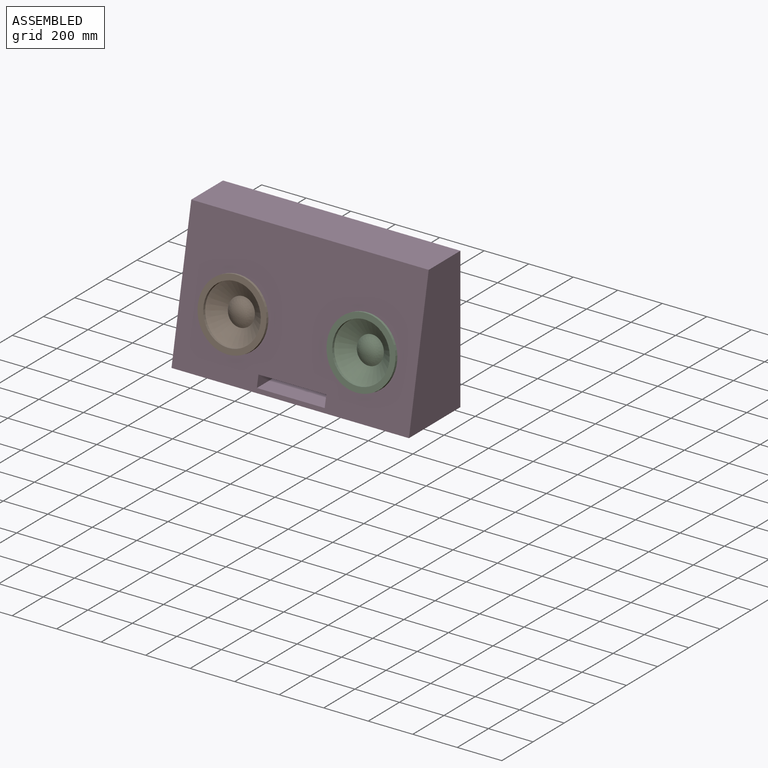
[diagram: assembled view]
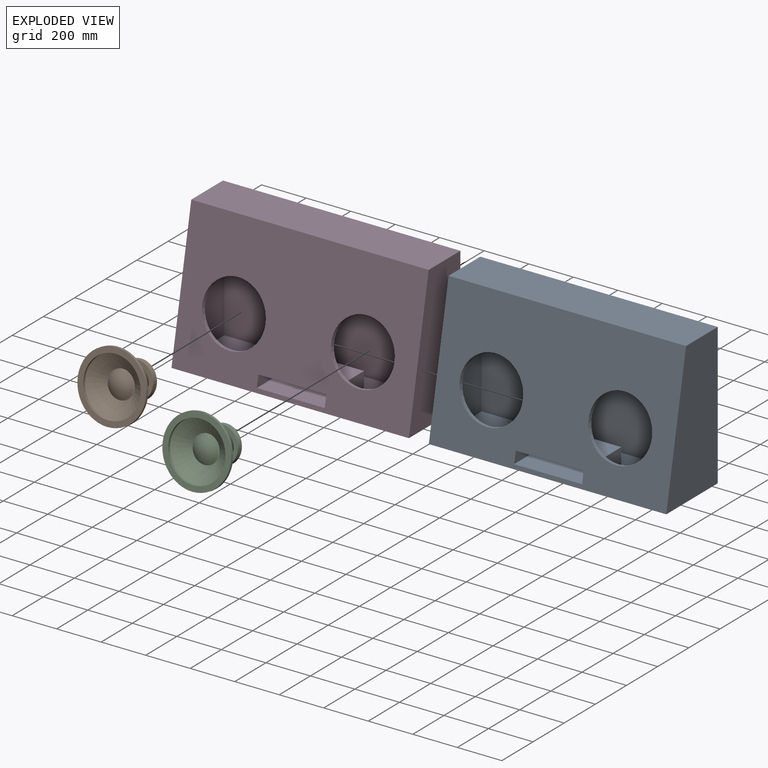
[diagram: exploded view]
GUIDED TOUR — MATED ASSEMBLY (Onshape document 32dec085a1a6e0328c9df80b, AutoMate assembly 32dec085a1a6e0328c9df80b_0a0aac6e06e7a107e2a16ed9_fb869511811cfe541d8ffc53_default)

This assembly has 4 components, labeled P0..P3 below (a component is one placed occurrence of a part; the same part can appear more than once), held together by 2 mates. A mate is a constraint between two components; its type names the relative motion it leaves free:
  CYLINDRICAL — leaves both rotation about and translation along the listed axis free.
Axis/direction vectors are unit vectors and 'through' points are millimeter coordinates, both in the assembly's world frame.

MATES
  1. CYLINDRICAL "Cylindrical 1": P1 <-> P3, axis (0.000, 0.981, -0.196) through (-289.72, -277.43, 263.86) mm
  2. CYLINDRICAL "Cylindrical 2": P2 <-> P3, axis (0.000, 0.981, -0.196) through (289.72, -277.43, 263.86) mm

ASSEMBLY ORDER
  1. P3 — the base component [order heuristic]
  2. P0 — core [order heuristic]
  3. P2 [order verified]
  4. P1 [order verified]
(P1, P2 verified with a relaxed clearance tolerance: the source model stores slight part interference there.)
Order-tag legend:
  [order verified] — this step's position reverses a verified removal order: the component was checked to insert without passing through the ones already placed.
  [order heuristic] — the first 2 components form the assembly's core: parts whose collision-free extraction could not be verified, listed in mate-graph order.

Of the 4 components, 2 carry the full construction recipe — the FeatureScript program that regenerates the part's solid from scratch; the rest are supplied as boundary geometry only.
Each toured component is shown spotlighted twice — in the assembled view, then in the exploded view, where a leader line traces a displaced component back to its assembled socket (saturated green if recipe-attached, orange if geometry-only; every other component desaturated gray) — followed by its recipe or geometry summary and the mates that hold it.
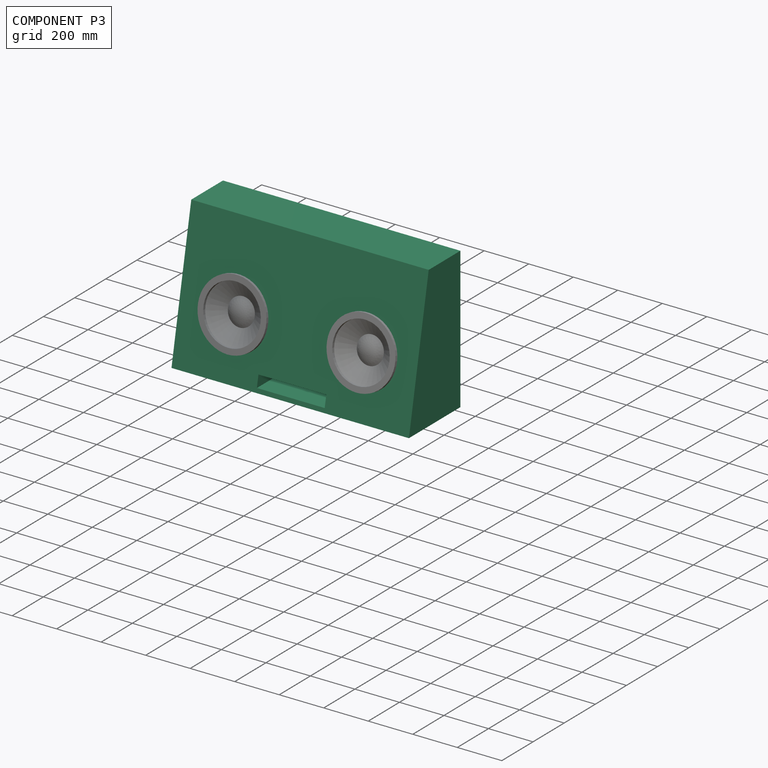
[diagram: component P3 — assembled]
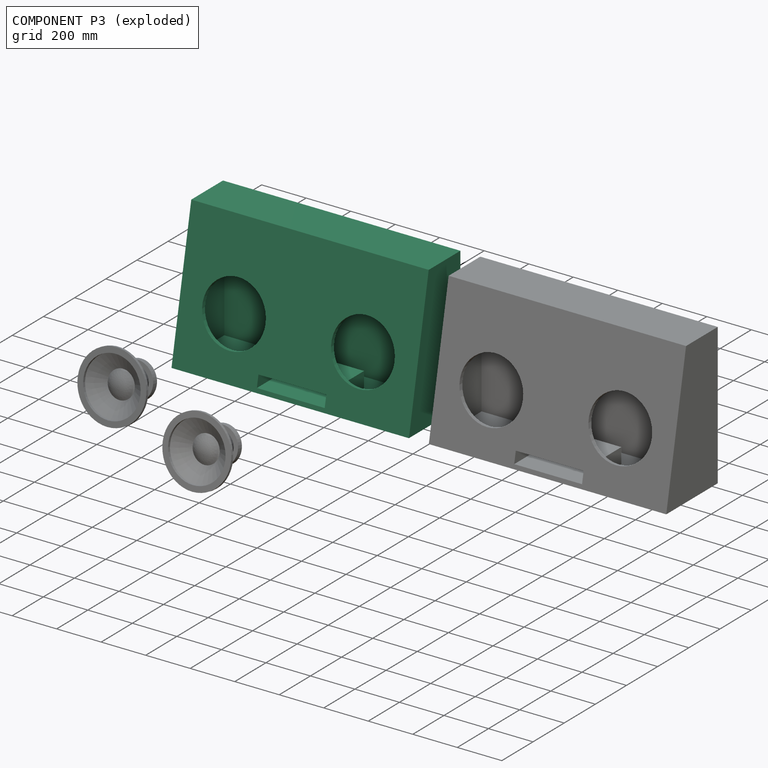
[diagram: component P3 — exploded]
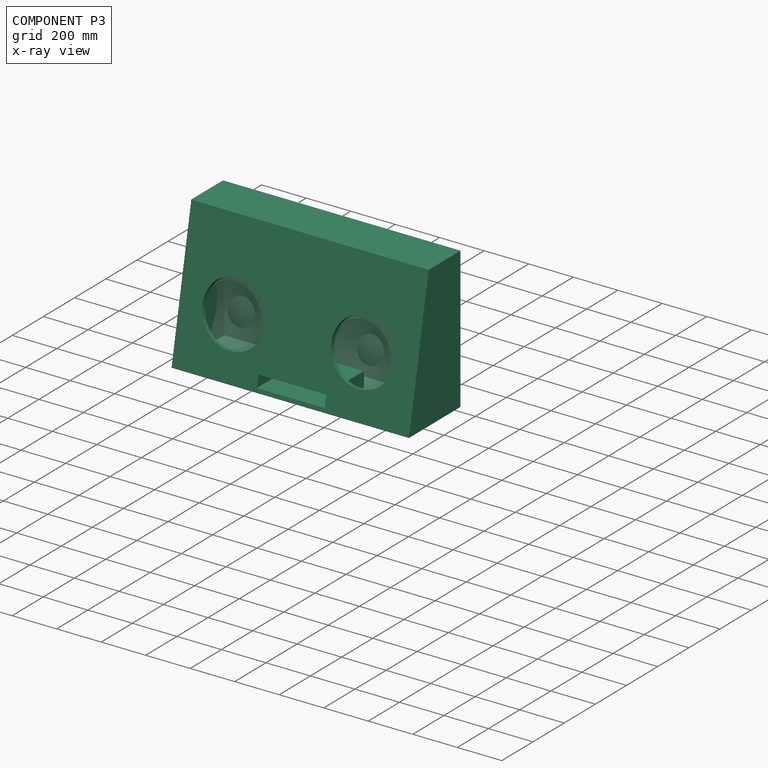
[diagram: component P3 — x-ray view]
COMPONENT P3 — same part as P0 (CADFS 00611857); its construction recipe is shown at P0.
Held by: CYLINDRICAL mate "Cylindrical 1" to P1; CYLINDRICAL mate "Cylindrical 2" to P2.
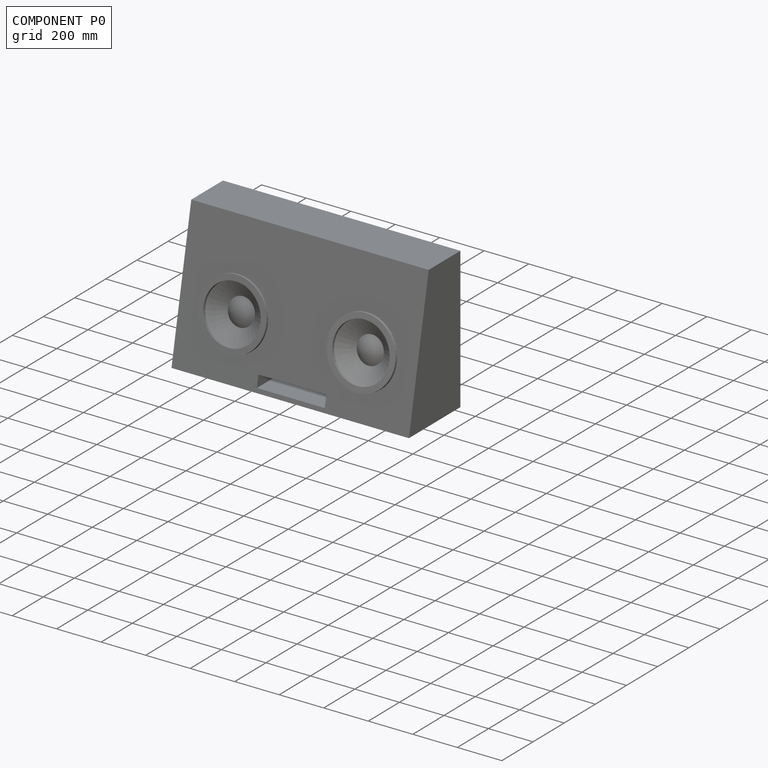
[diagram: component P0 — assembled]
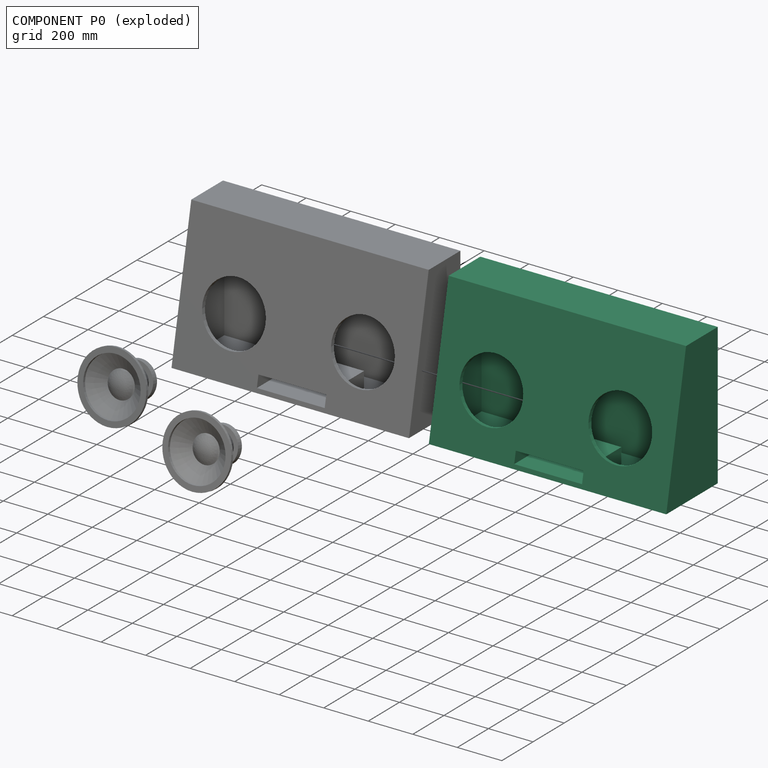
[diagram: component P0 — exploded]
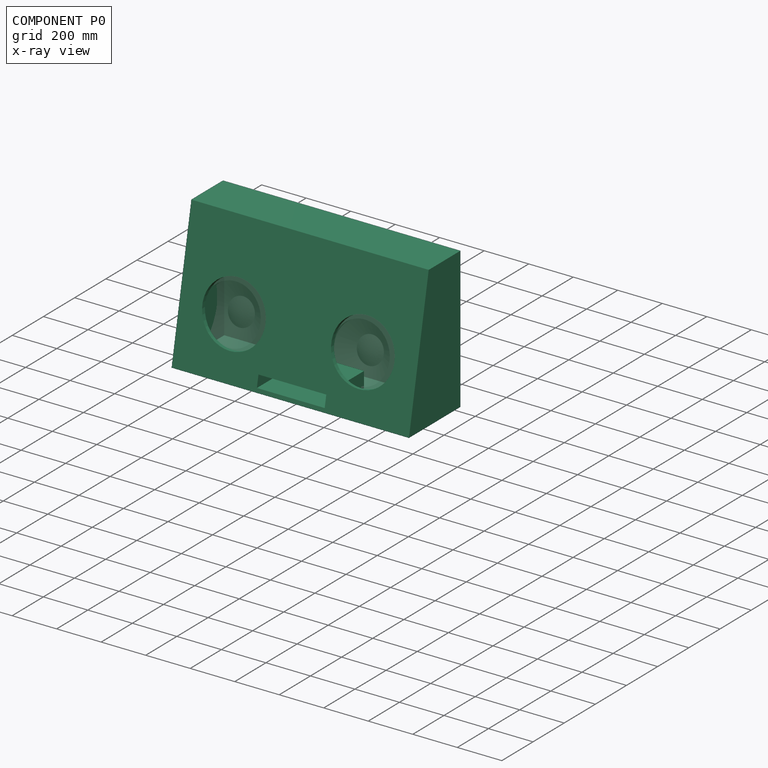
[diagram: component P0 — x-ray view]
COMPONENT P0 — recipe-attached (CADFS 00611857, mesh-verified: the recipe's output STEP matches this component's geometry to below the mesh-comparison resolution (tessellation chordal tolerance ~1.93 mm)).
Held by: no mates (free).
Construction recipe (FeatureScript — the CAD program that rebuilds this solid; sketch coordinates are in the units given by the * unit suffixes, e.g. mm):

FeatureScript 1511;
import(path : "onshape/std/geometry.fs", version : "1511.0");
import(path : "onshape/std/common.fs", version : "1511.0");
const mm = millimeter;
const VERTEX = EntityType.VERTEX;
const EDGE = EntityType.EDGE;
const FACE = EntityType.FACE;
const BODY = EntityType.BODY;
function v(x, y){return vector(x, y);}
function OD(order){return orderDisambiguation(order);}
function OSD(set){return originalSetDisambiguation(set);}
function TD(topology){return topologyDisambiguation(topology);}
function TDD(query){return trueDependencyDisambiguation(query);}
function sQuery(a, b, c) {return sketchEntityQuery(a, b, c);}

annotation { "Feature Type Name" : "Feature", "Feature Type Description" : "" }
export const myFeature = defineFeature(function(context is Context, id is Id, definition is map)
    precondition{}
    {
        {
            var Q0;
            Q0=qCreatedBy(makeId("Right.planeOp"),FACE);
            var sketch = newSketch(context, id + "F0", { "sketchPlane" : qUnion([Q0])});
            skLineSegment(sketch, "E0", {"start": v(0, 0) * mm, "end": v(-330.2, 0) * mm});
            skLineSegment(sketch, "E1", {"start": v(-330.2, 0) * mm, "end": v(-203.2, 635) * mm});
            skLineSegment(sketch, "E2", {"start": v(-203.2, 635) * mm, "end": v(0, 635) * mm});
            skLineSegment(sketch, "E3", {"start": v(0, 635) * mm, "end": v(0, 0) * mm});
            skSolve(sketch);
        }
        {
            var Q0;
            Q0 = qSketchRegion(id + "F0", true);
            extrude(context, id + "F1", {"entities" : qUnion([Q0]), "depth" : 533.4 * mm, "offsetDistance" : 25.4 * mm, "hasSecondDirection" : true, "secondDirectionOppositeDirection" : true, "secondDirectionDepth" : 533.4 * mm});
        }
        {
            var Q0;
            Q0=qCreatedBy(makeId("Front.planeOp"),FACE);
            cPlane(context, id + "F2", {"entities" : qUnion([Q0]), "cplaneType" : CPlaneType.OFFSET, "offset" : 25.4 * mm, "width" : 152.4 * mm, "height" : 152.4 * mm});
        }
        {
            var Q0;
            Q0=qCreatedBy(id+"F2.planeOp",FACE);
            var sketch = newSketch(context, id + "F3", { "sketchPlane" : qUnion([Q0])});
            skLineSegment(sketch, "E4.bottom", {"start": v(-152.4, 69.85) * mm, "end": v(152.4, 69.85) * mm});
            skLineSegment(sketch, "E4.top", {"start": v(-152.4, 19.05) * mm, "end": v(152.4, 19.05) * mm});
            skLineSegment(sketch, "E4.left", {"start": v(-152.4, 69.85) * mm, "end": v(-152.4, 19.05) * mm});
            skLineSegment(sketch, "E4.right", {"start": v(152.4, 69.85) * mm, "end": v(152.4, 19.05) * mm});
            skSolve(sketch);
        }
        {
            var Q0;
            Q0 = qSketchRegion(id + "F3", true);
            extrude(context, id + "F4", {"entities" : qUnion([Q0]), "operationType" : NewBodyOperationType.REMOVE, "endBound" : BoundingType.THROUGH_ALL, "depth" : 25.4 * mm, "offsetDistance" : 25.4 * mm});
        }
        {
            var Q0;
            Q0=makeQuery(id+"F4.boolean.opBoolean","COPY",FACE,{"derivedFrom":makeQuery(id+"F4.opExtrude","SWEPT_FACE",FACE,{"disambiguationData":[OSD([sQuery(id+"F3.wireOp",EDGE,"E4.left")])]})});
            var Q1;
            Q1=makeQuery(id+"F4.boolean.opBoolean","COPY",FACE,{"derivedFrom":makeQuery(id+"F4.opExtrude","SWEPT_FACE",FACE,{"disambiguationData":[OSD([sQuery(id+"F3.wireOp",EDGE,"E4.bottom")])]})});
            var Q2;
            Q2=makeQuery(id+"F4.boolean.opBoolean","COPY",FACE,{"derivedFrom":makeQuery(id+"F4.opExtrude","SWEPT_FACE",FACE,{"disambiguationData":[OSD([sQuery(id+"F3.wireOp",EDGE,"E4.right")])]})});
            shell(context, id + "F5", {"entities" : qUnion([Q0, Q1, Q2]), "thickness" : 19.05 * mm});
        }
        {
            var Q0;
            Q0=makeQuery(id+"F1.opExtrude","SWEPT_FACE",FACE,{"disambiguationData":[OSD([sQuery(id+"F0.wireOp",EDGE,"E1")])]});
            var sketch = newSketch(context, id + "F6", { "sketchPlane" : qUnion([Q0])});
            skCircle(sketch, "E5", {"center": v(-289.72, 204.32) * mm, "radius": 142.08 * mm});
            skCircle(sketch, "E6", {"center": v(289.72, 204.32) * mm, "radius": 142.08 * mm});
            skSolve(sketch);
        }
        {
            var Q0;
            Q0 = qSketchRegion(id + "F6", true);
            extrude(context, id + "F7", {"entities" : qUnion([Q0]), "operationType" : NewBodyOperationType.REMOVE, "oppositeDirection" : true, "depth" : 50.8 * mm, "offsetDistance" : 25.4 * mm});
        }
        {
            var Q0;
            Q0=makeQuery(id+"F4.boolean.opBoolean","COPY",FACE,{"derivedFrom":makeQuery(id+"F4.opExtrude","CAP_FACE",FACE,{"disambiguationData":[OSD([sQuery(id+"F3.wireOp",EDGE,"E4.bottom"),sQuery(id+"F3.wireOp",EDGE,"E4.top"),sQuery(id+"F3.wireOp",EDGE,"E4.left"),sQuery(id+"F3.wireOp",EDGE,"E4.right")])],"isStart":true})});
            var sketch = newSketch(context, id + "F8", { "sketchPlane" : qUnion([Q0])});
            skSolve(sketch);
        }
        {
            var Q0;
            Q0=makeQuery(id+"F8.imprint","IMPRINT",FACE,{"disambiguationData":[TD([[makeQuery(id+"F8.imprint","IMPRINT",EDGE,{"derivedFrom":makeQuery(id+"F4.boolean.opBoolean","COPY",EDGE,{"derivedFrom":makeQuery(id+"F4.opExtrude","CAP_EDGE",EDGE,{"disambiguationData":[OSD([sQuery(id+"F3.wireOp",EDGE,"E4.top")])],"isStart":true})})}),1.0]])]});
            var Q1;
            Q1=makeQuery(id+"F5.opShell","OFFSET_FACE",FACE,{"disambiguationData":[OSD([sQuery(id+"F0.wireOp",EDGE,"E3")])]});
            extrude(context, id + "F9", {"entities" : qUnion([Q0]), "operationType" : NewBodyOperationType.REMOVE, "endBound" : BoundingType.UP_TO_SURFACE, "oppositeDirection" : true, "depth" : 25.4 * mm, "endBoundEntityFace" : qUnion([Q1]), "offsetDistance" : 25.4 * mm});
        }
        {
            var Q0;
            Q0=qCreatedBy(makeId("Front.planeOp"),FACE);
            cPlane(context, id + "F10", {"entities" : qUnion([Q0]), "cplaneType" : CPlaneType.OFFSET, "offset" : 101.6 * mm, "width" : 152.4 * mm, "height" : 152.4 * mm});
        }
        {
            var Q0;
            Q0=qCreatedBy(id+"F10.planeOp",FACE);
            var sketch = newSketch(context, id + "F11", { "sketchPlane" : qUnion([Q0])});
            skLineSegment(sketch, "E7", {"start": v(-152.4, 19.05) * mm, "end": v(-171.45, 19.05) * mm});
            skLineSegment(sketch, "E8", {"start": v(-171.45, 19.05) * mm, "end": v(-171.45, 88.9) * mm});
            skLineSegment(sketch, "E9", {"start": v(-171.45, 88.9) * mm, "end": v(171.45, 88.9) * mm});
            skLineSegment(sketch, "E10", {"start": v(171.45, 88.9) * mm, "end": v(171.45, 19.05) * mm});
            skLineSegment(sketch, "E11", {"start": v(171.45, 19.05) * mm, "end": v(152.4, 19.05) * mm});
            skLineSegment(sketch, "E12", {"start": v(152.4, 19.05) * mm, "end": v(152.4, 69.85) * mm});
            skLineSegment(sketch, "E13", {"start": v(152.4, 69.85) * mm, "end": v(-152.4, 69.85) * mm});
            skLineSegment(sketch, "E14", {"start": v(-152.4, 69.85) * mm, "end": v(-152.4, 19.05) * mm});
            skSolve(sketch);
        }
        {
            var Q0;
            Q0 = qSketchRegion(id + "F11", true);
            var Q1;
            Q1=makeQuery(id+"F1.opExtrude","SWEPT_FACE",FACE,{"disambiguationData":[OSD([sQuery(id+"F0.wireOp",EDGE,"E1")])]});
            extrude(context, id + "F12", {"entities" : qUnion([Q0]), "operationType" : NewBodyOperationType.ADD, "endBound" : BoundingType.UP_TO_SURFACE, "depth" : 25.4 * mm, "endBoundEntityFace" : qUnion([Q1]), "offsetDistance" : 25.4 * mm});
        }
    });
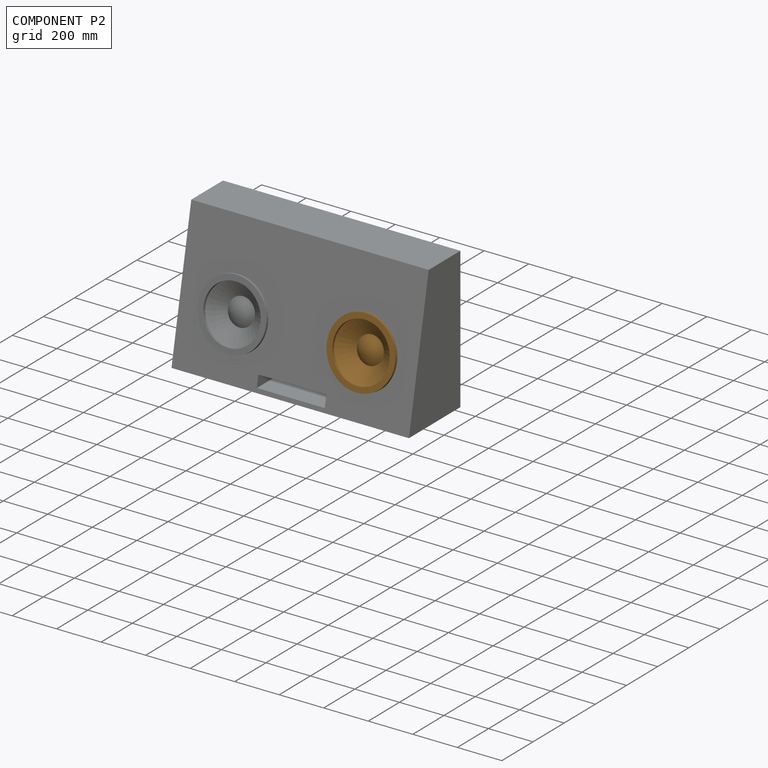
[diagram: component P2 — assembled]
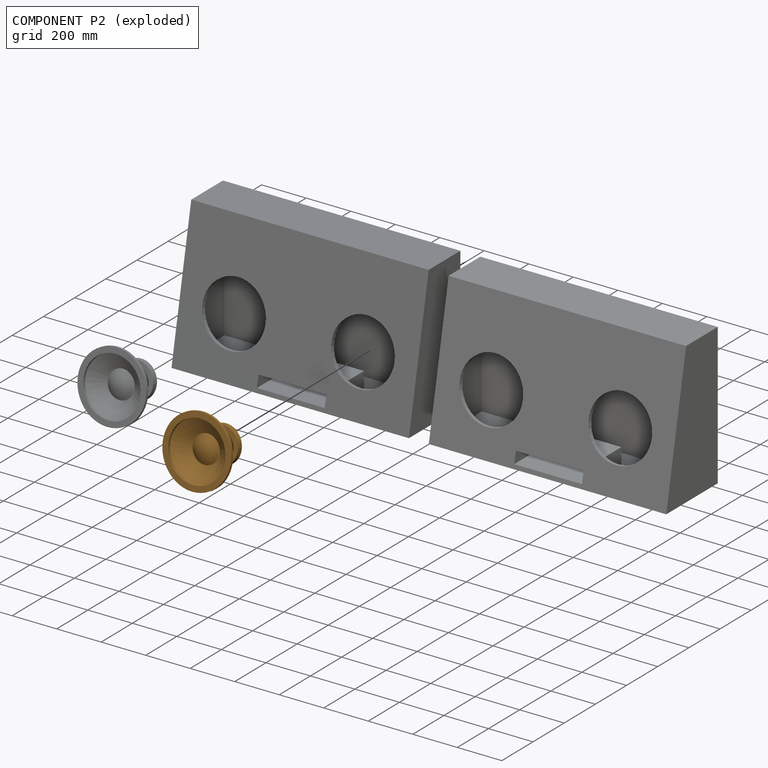
[diagram: component P2 — exploded]
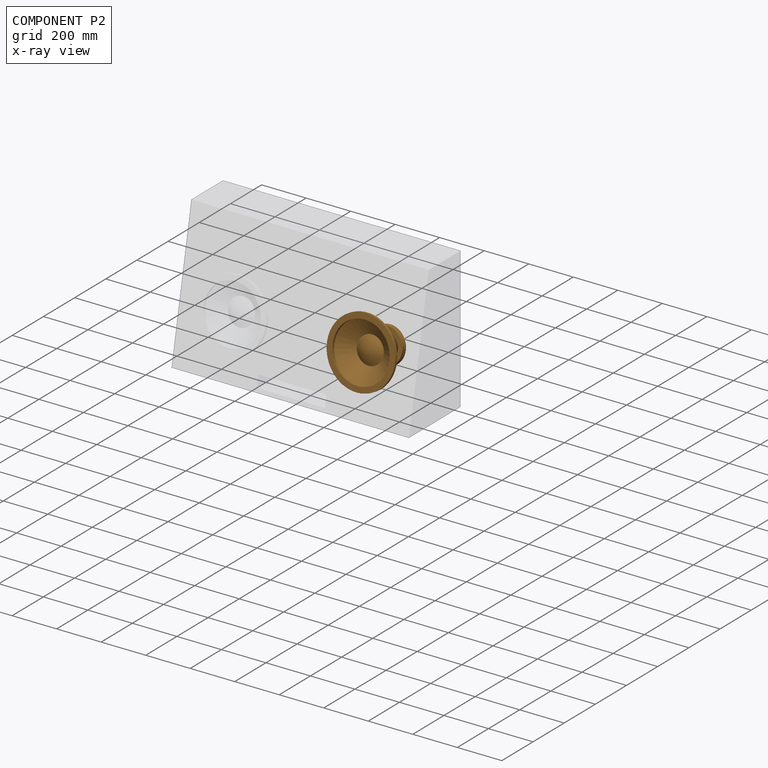
[diagram: component P2 — x-ray view]
COMPONENT P2 — geometry summary (no construction recipe available for this part):
  bounding box: 306.9 x 306.9 x 177.8 mm
  B-rep topology: 1 solid, 11 faces, 33 edges
  volume: 4088265 mm^3 (24% of its bounding box)
  symmetry: revolution-symmetric about the z axis through its bounding-box center; mirror-symmetric across its x mid-plane, y mid-plane
Held by: CYLINDRICAL mate "Cylindrical 2" to P3.
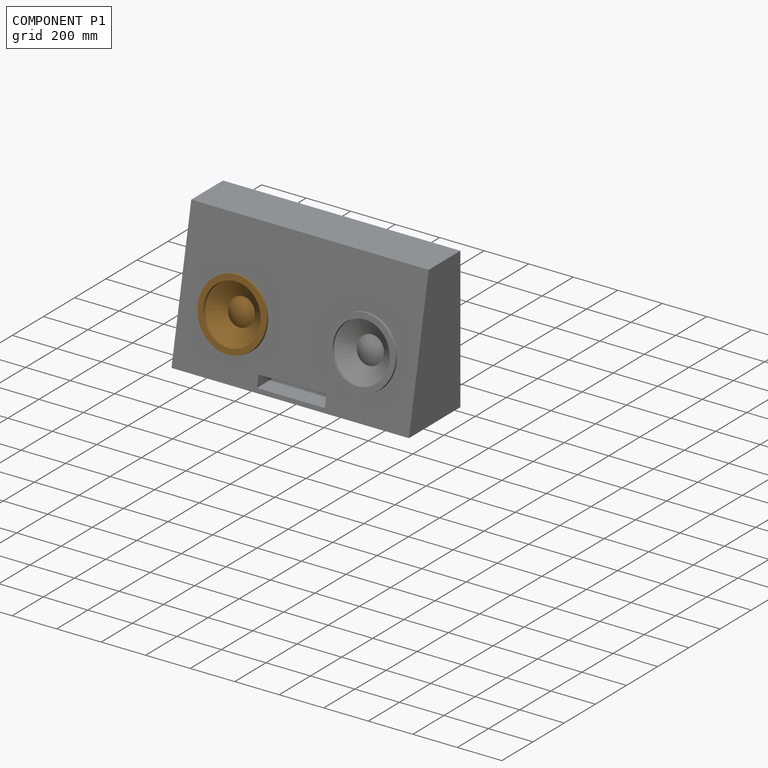
[diagram: component P1 — assembled]
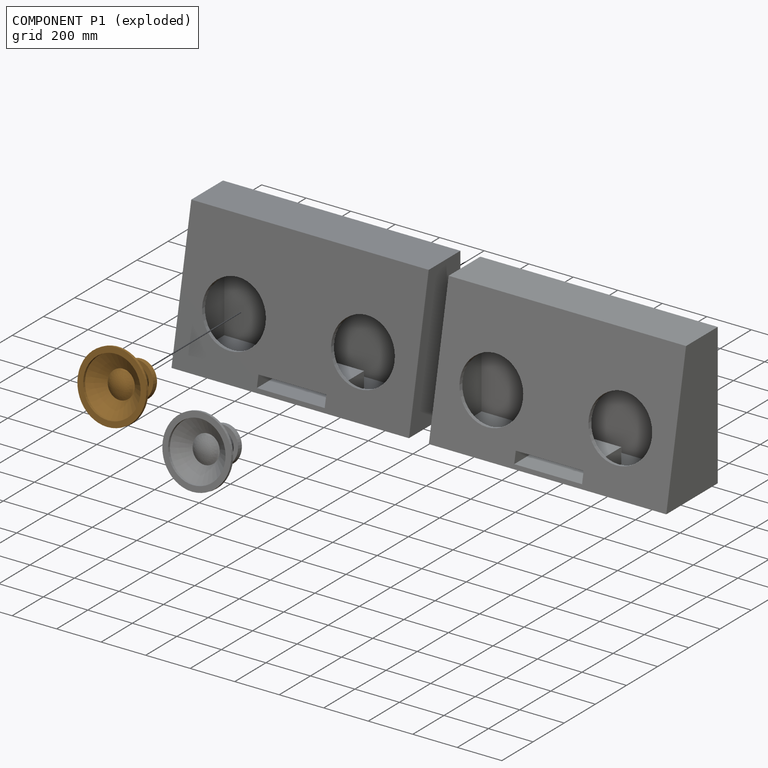
[diagram: component P1 — exploded]
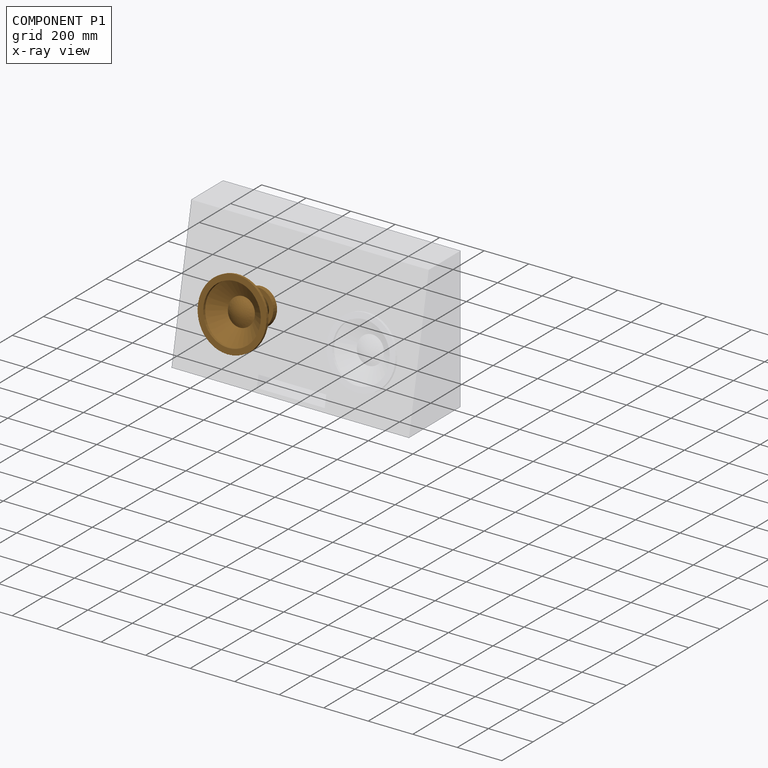
[diagram: component P1 — x-ray view]
COMPONENT P1 — geometry summary (no construction recipe available for this part):
  bounding box: 306.9 x 306.9 x 177.8 mm
  B-rep topology: 1 solid, 11 faces, 33 edges
  volume: 4088265 mm^3 (24% of its bounding box)
  symmetry: revolution-symmetric about the z axis through its bounding-box center; mirror-symmetric across its x mid-plane, y mid-plane
Held by: CYLINDRICAL mate "Cylindrical 1" to P3.
PROVENANCE & LICENSES
Assembly (occurrences, transforms, mates, per-part STEP geometry): AutoMate dataset, Zenodo record 7776208, CC0.
Construction recipes: CADFS (HuggingFace VladPyatov/CADFS, CC-BY-4.0, layered over the ABC dataset), FeatureScript reconstruction programs keyed by ABC model id.
Join: ABC meta listings map ABC model id -> Onshape documentId; within a shared document, parts are matched by geometric signature (bounding-box dims + volume at 0.1% relative tolerance, exact B-rep face/solid counts).
Verification: 2 of this assembly's 4 components carry a recipe attachment, and every attachment is mesh-verified: the CADFS STEP and the AutoMate member STEP were compared as meshes in their shared local frame (symmetric sampled-point-to-mesh distance); worst across the 2 attachments: below the mesh-comparison resolution (tessellation chordal tolerance ~1.93 mm) on a 1285 mm part.
Renders: orthographic iso camera (az 35 / el 25); the floor grid conveys scale (grid pitch printed in each image; no ruler). In the exploded view each component is displaced by its stored offset vector: the offsets alone carry the explosion direction (mate normal/axis signs are not orientation cues and do not encode it), and separation distances are assigned per mate-chain, not proportionally to assembly-order depth.
